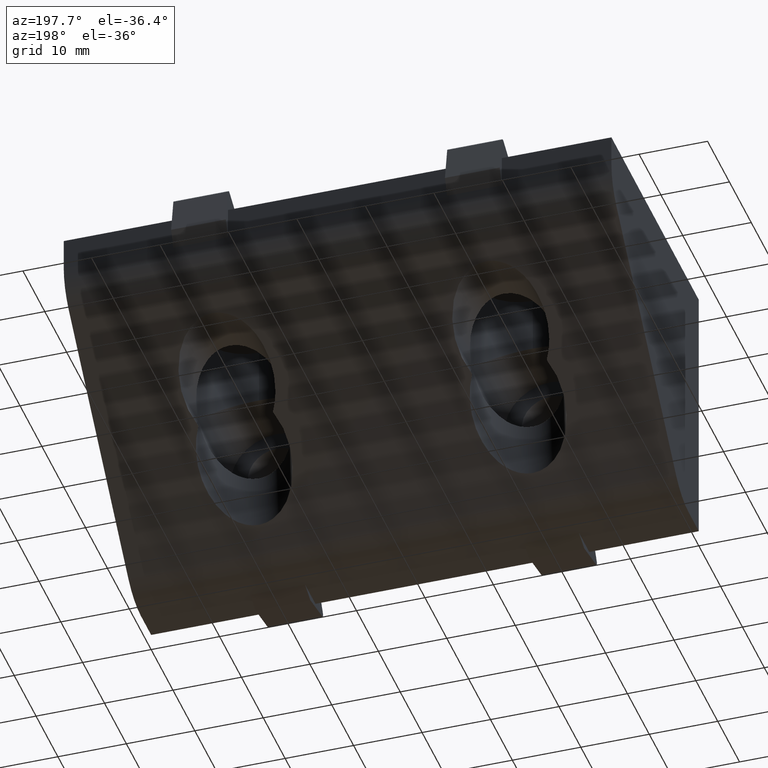
[diagram: clean part render]
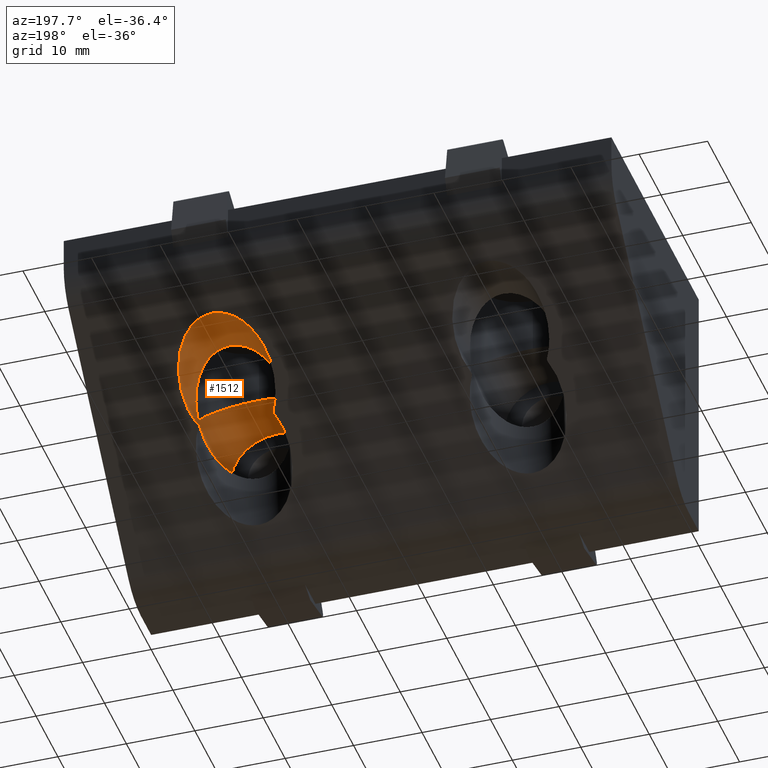
[diagram: same view with one face highlighted and labeled with its STEP entity id]
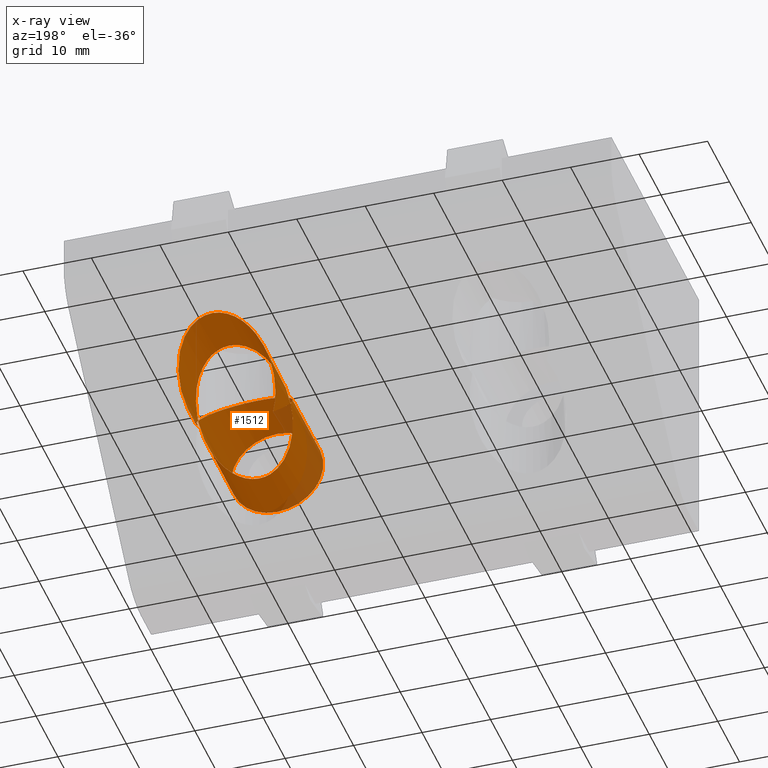
[diagram: x-ray of the same camera — body ghosted, the highlighted face saturated]
A machine part, auxiliary view. The second image highlights one B-rep face of the part: STEP entity #1512.
The next image is the same camera in x-ray: the body ghosted, the highlighted face saturated — about 13% of this face is hidden behind the body in this view.
In plain terms, the highlighted cylindrical surface (bore or boss wall) has radius 6.75 mm, axis along (0, 1, 0).
Its self-contained STEP definition (entity closure, byte-faithful):
#402=CARTESIAN_POINT('',(25.437139671100745,23.999992408000303,-23.999995030797592));
#403=VERTEX_POINT('',#402);
#404=CARTESIAN_POINT('',(14.562857168740376,23.999992407996466,-23.999995030801600));
#405=VERTEX_POINT('',#404);
#406=CARTESIAN_POINT('',(19.999998419919088,27.999995135905468,-19.999991744930448));
#407=DIRECTION('',(0.0,-0.707106830503862,0.707106731869230));
#408=DIRECTION('',(0.0,0.707106731869230,0.707106830503862));
#409=AXIS2_PLACEMENT_3D('',#406,#407,#408);
#410=ELLIPSE('',#409,9.545944156207165,6.750002316462510);
#411=EDGE_CURVE('',#403,#405,#410,.T.);
#1227=CARTESIAN_POINT('',(19.999998419919088,13.249997058446896,-13.249989428467934));
#1228=VERTEX_POINT('',#1227);
#1235=CARTESIAN_POINT('',(20.000091286149274,26.749995335546590,-13.249988154311279));
#1236=VERTEX_POINT('',#1235);
#1237=CARTESIAN_POINT('',(19.999998419919088,13.249997058446894,-13.249989428467934));
#1238=CARTESIAN_POINT('',(19.820393710549624,13.249997058446894,-13.249989428467934));
#1239=CARTESIAN_POINT('',(19.378011930974914,13.267698458312340,-13.267690818365590));
#1240=CARTESIAN_POINT('',(18.446003020757345,13.397461106541837,-13.397453392444831));
#1241=CARTESIAN_POINT('',(17.337371878308510,13.750822658735208,-13.750814732642816));
#1242=CARTESIAN_POINT('',(16.298929069725833,14.322251592291842,-14.322243258143217));
#1243=CARTESIAN_POINT('',(15.581936760001483,14.876850514915297,-14.876841691067471));
#1244=CARTESIAN_POINT('',(15.119221816588798,15.327973191278765,-15.327963877101599));
#1245=CARTESIAN_POINT('',(14.695016787727138,15.808534316511171,-15.808524383938263));
#1246=CARTESIAN_POINT('',(14.346894324088094,16.289903656570630,-16.289892969990923));
#1247=CARTESIAN_POINT('',(14.035588303751673,16.826733819593485,-16.826721925100799));
#1248=CARTESIAN_POINT('',(13.848633768355867,17.211404257870981,-17.211391309919364));
#1249=CARTESIAN_POINT('',(13.671518916870760,17.637423710131031,-17.637408958575932));
#1250=CARTESIAN_POINT('',(13.536598944933008,18.034275459265196,-18.034259737670020));
#1251=CARTESIAN_POINT('',(13.424956451117332,18.458647266729059,-18.458624968281729));
#1252=CARTESIAN_POINT('',(13.359759647209302,18.775113238330302,-18.775095460178498));
#1253=CARTESIAN_POINT('',(13.315489301144162,19.051883908134805,-19.051837785622773));
#1254=CARTESIAN_POINT('',(13.291026844677123,19.249511063587022,-19.249520315662842));
#1255=CARTESIAN_POINT('',(13.275697401321938,19.407563323757500,-19.407435938328707));
#1256=CARTESIAN_POINT('',(13.266309797983940,19.526070382943200,-19.526320873769311));
#1257=CARTESIAN_POINT('',(13.259018456144744,19.644469192284323,-19.643246708170029));
#1258=CARTESIAN_POINT('',(13.253811753738976,19.763256711689369,-19.767435341276229));
#1259=CARTESIAN_POINT('',(13.250732229497356,19.879454216133318,-19.863491129078671));
#1260=CARTESIAN_POINT('',(13.249639080568834,19.999995559919789,-20.056538199255122));
#1261=CARTESIAN_POINT('',(13.250732229496961,20.120536903708022,-19.863491129077698));
#1262=CARTESIAN_POINT('',(13.253811753740599,20.236734408146543,-19.767435341280247));
#1263=CARTESIAN_POINT('',(13.259018456138666,20.355521927571640,-19.643246708154962));
#1264=CARTESIAN_POINT('',(13.266309798006667,20.473920736837954,-19.526320873825597));
#1265=CARTESIAN_POINT('',(13.275697401237036,20.592427796303102,-19.407435938118436));
#1266=CARTESIAN_POINT('',(13.291026845128727,20.750480055080608,-19.249520316781229));
#1267=CARTESIAN_POINT('',(13.315489297494921,20.948107221180081,-19.051837776585636));
#1268=CARTESIAN_POINT('',(13.359759663442876,21.224877839361685,-18.775095500380047));
#1269=CARTESIAN_POINT('',(13.424956355483531,21.541344101411742,-18.458624731448886));
#1270=CARTESIAN_POINT('',(13.544213823395349,21.994658018887318,-18.005317770389105));
#1271=CARTESIAN_POINT('',(13.704661632512877,22.456635661502325,-17.543341084858998));
#1272=CARTESIAN_POINT('',(13.927485021814388,22.960648171961040,-17.039330559127908));
#1273=CARTESIAN_POINT('',(14.181859692583892,23.440128646663176,-16.559851209787659));
#1274=CARTESIAN_POINT('',(14.607399423813600,24.093418011726605,-15.906563085141503));
#1275=CARTESIAN_POINT('',(15.169627472305017,24.748983398419689,-15.250998515563126));
#1276=CARTESIAN_POINT('',(16.021434170975944,25.491167697903109,-14.508814945183829));
#1277=CARTESIAN_POINT('',(16.874806154462867,26.020369038130795,-13.979613997320794));
#1278=CARTESIAN_POINT('',(17.963850409493858,26.461499044706095,-13.538484278508866));
#1279=CARTESIAN_POINT('',(18.928442478278175,26.696322205057218,-13.303661254663584));
#1280=CARTESIAN_POINT('',(19.681782799478317,26.749993322488166,-13.249990167356261));
#1281=CARTESIAN_POINT('',(20.000091286149274,26.749995335546590,-13.249988154311279));
#1282=B_SPLINE_CURVE_WITH_KNOTS('',3,(#1237,#1238,#1239,#1240,#1241,#1242,#1243,#1244,#1245,#1246,#1247,#1248,#1249,#1250,#1251,#1252,#1253,#1254,#1255,#1256,#1257,#1258,#1259,#1260,#1261,#1262,#1263,#1264,#1265,#1266,#1267,#1268,#1269,#1270,#1271,#1272,#1273,#1274,#1275,#1276,#1277,#1278,#1279,#1280,#1281),.UNSPECIFIED.,.F.,.U.,(4,1,1,1,1,1,1,1,1,1,1,1,1,1,1,1,1,1,1,1,1,1,1,1,1,1,1,1,1,1,1,1,1,1,1,1,1,1,1,1,1,1,4),(0.0,0.539081213596918,1.326695496417043,2.840035277583268,4.151706921437035,5.254611806897104,6.019984913599855,6.513780684534441,7.657144544209129,8.310137588951935,8.974364245271438,9.382123786417033,10.193785180283921,10.705100481138352,11.213090108221090,11.550332053166615,11.886715360339998,12.054654366879507,12.222459981833707,12.390156322223111,12.557762044025377,12.725264924369748,12.887972188165056,13.050679451960365,13.218182332304735,13.385788054107001,13.553484394496401,13.721290009450613,13.889229015990109,14.225612323163494,14.562854268109014,15.070843895191764,15.582159196048842,16.518698735025335,17.087624337635738,17.821888263034616,18.690201580889635,20.136813446438950,21.064805781785051,22.739553024633636,23.516414668748737,24.821124126270732,25.776092787975244),.UNSPECIFIED.);
#1283=EDGE_CURVE('',#1228,#1236,#1282,.T.);
#1285=CARTESIAN_POINT('',(20.000091286149274,26.749995335546590,-13.249988154311279));
#1286=CARTESIAN_POINT('',(20.021458295769516,26.749995470676630,-13.249988019182139));
#1287=CARTESIAN_POINT('',(20.416134803505635,26.748110240725900,-13.251873248091051));
#1288=CARTESIAN_POINT('',(21.089012463596443,26.685141504157357,-13.314841949490202));
#1289=CARTESIAN_POINT('',(22.010220469315268,26.462920034590393,-13.537063287735167));
#1290=CARTESIAN_POINT('',(22.907975093300060,26.120372317056407,-13.879610786816695));
#1291=CARTESIAN_POINT('',(23.889427833492924,25.562352199923367,-14.437630497304321));
#1292=CARTESIAN_POINT('',(24.670252462676068,24.905890936831916,-15.094091157098131));
#1293=CARTESIAN_POINT('',(25.240600270993504,24.270670768604440,-15.729310533880222));
#1294=CARTESIAN_POINT('',(25.571480214740063,23.822264239304399,-16.177716357643227));
#1295=CARTESIAN_POINT('',(25.909534492629586,23.283520516227046,-16.716459014109795));
#1296=CARTESIAN_POINT('',(26.171283613935927,22.762840602569071,-17.237137527170127));
#1297=CARTESIAN_POINT('',(26.366347127787272,22.254529586630674,-17.745446451800348));
#1298=CARTESIAN_POINT('',(26.463862593278272,21.949369085894908,-18.050604986581572));
#1299=CARTESIAN_POINT('',(26.523736602288217,21.736423257753767,-18.263549476381037));
#1300=CARTESIAN_POINT('',(26.561941994112651,21.584359570572119,-18.415610914075874));
#1301=CARTESIAN_POINT('',(26.614192107312071,21.356423569336826,-18.643547465448524));
#1302=CARTESIAN_POINT('',(26.656049405142227,21.135457769133801,-18.864470835225955));
#1303=CARTESIAN_POINT('',(26.696752392184258,20.855438400164182,-19.144578668242350));
#1304=CARTESIAN_POINT('',(26.716875249101953,20.677153590891862,-19.322498475748954));
#1305=CARTESIAN_POINT('',(26.730486690672063,20.516589029023166,-19.483751191611450));
#1306=CARTESIAN_POINT('',(26.737848095926630,20.409439764511589,-19.588944077397990));
#1307=CARTESIAN_POINT('',(26.744282422569867,20.287942896840121,-19.718723325752148));
#1308=CARTESIAN_POINT('',(26.748809993864217,20.151139155977713,-19.812036552351238));
#1309=CARTESIAN_POINT('',(26.750118702009114,20.046660969040616,-20.039185430335493));
#1310=CARTESIAN_POINT('',(26.749947158042961,19.968687763475316,-19.968390110248524));
#1311=CARTESIAN_POINT('',(26.749502639085193,19.902992686926684,-19.902311338453440));
#1312=CARTESIAN_POINT('',(26.747393450711169,19.793852183525800,-19.793929312903451));
#1313=CARTESIAN_POINT('',(26.741335032925797,19.647930438536417,-19.647805792586055));
#1314=CARTESIAN_POINT('',(26.732079459659019,19.501198934950864,-19.501158635320376));
#1315=CARTESIAN_POINT('',(26.719615198504830,19.354670624859125,-19.354623869300369));
#1316=CARTESIAN_POINT('',(26.703924337034376,19.208085794516364,-19.208050792931914));
#1317=CARTESIAN_POINT('',(26.678649846499862,19.012496766510100,-19.012466804102367));
#1318=CARTESIAN_POINT('',(26.646826461200213,18.817028295454215,-18.817003020961323));
#1319=CARTESIAN_POINT('',(26.598691471908399,18.572689408624520,-18.572667679734103));
#1320=CARTESIAN_POINT('',(26.541968925625699,18.327984458525037,-18.327965405550529));
#1321=CARTESIAN_POINT('',(26.459977322515336,18.034682549312439,-18.034665723927443));
#1322=CARTESIAN_POINT('',(26.366109479228165,17.749491780425085,-17.749476581617930));
#1323=CARTESIAN_POINT('',(26.248993388123029,17.440355249311590,-17.440341427256293));
#1324=CARTESIAN_POINT('',(25.985596241657490,16.838793100106887,-16.838781352086198));
#1325=CARTESIAN_POINT('',(25.629209320574244,16.238014455938341,-16.238003862871381));
#1326=CARTESIAN_POINT('',(25.158165087916558,15.637836217114838,-15.637826513326745));
#1327=CARTESIAN_POINT('',(24.850717085077907,15.297025478366660,-15.297016198067144));
#1328=CARTESIAN_POINT('',(24.363571473839770,14.832014933034914,-14.832006152101998));
#1329=CARTESIAN_POINT('',(23.799852482979350,14.398700964078596,-14.398692561676535));
#1330=CARTESIAN_POINT('',(22.933021342463235,13.893764362356110,-13.893756338702357));
#1331=CARTESIAN_POINT('',(21.974657884791473,13.505469487917622,-13.505461711106491));
#1332=CARTESIAN_POINT('',(20.899049102432638,13.286976161776463,-13.286968511012892));
#1333=CARTESIAN_POINT('',(20.258726573290453,13.249997058446894,-13.249989428467934));
#1334=CARTESIAN_POINT('',(19.999998419919088,13.249997058446894,-13.249989428467934));
#1335=B_SPLINE_CURVE_WITH_KNOTS('',3,(#1285,#1286,#1287,#1288,#1289,#1290,#1291,#1292,#1293,#1294,#1295,#1296,#1297,#1298,#1299,#1300,#1301,#1302,#1303,#1304,#1305,#1306,#1307,#1308,#1309,#1310,#1311,#1312,#1313,#1314,#1315,#1316,#1317,#1318,#1319,#1320,#1321,#1322,#1323,#1324,#1325,#1326,#1327,#1328,#1329,#1330,#1331,#1332,#1333,#1334),.UNSPECIFIED.,.F.,.U.,(4,1,1,1,1,1,1,1,1,1,1,1,1,1,1,1,1,1,1,1,1,1,1,1,1,1,1,1,1,1,1,1,1,1,1,1,1,1,1,1,1,1,1,1,1,1,1,4),(25.776092787975244,25.840196716824508,26.960191533882444,27.798726904106502,28.750473198514932,30.009639784215658,31.559226510072634,32.372749497238630,33.199114070792213,33.703196129358354,34.872631791389608,35.540518584049963,35.936954719324397,36.199781494929852,36.461598530456037,36.592168621478891,37.179432648307888,37.407188337839933,37.786388613416008,37.938086218170703,38.089687776155714,38.241209463808602,38.455031128933705,38.663963927974208,38.701507565310145,38.742951861740856,38.950013859969872,39.157326338504120,39.364778442499770,39.572405335816846,39.780253940093793,39.988374681068592,40.405644960134573,40.614905864511279,41.034975591191767,41.457539042198420,41.883165157733721,42.277080732004030,42.815132120546082,44.554332674294642,45.032236561446553,45.726325711255278,46.268155923805395,47.486336597464913,48.216145272256952,49.632709786956497,50.775163844869809,51.552185575950489),.UNSPECIFIED.);
#1336=EDGE_CURVE('',#1236,#1228,#1335,.T.);
#1384=CARTESIAN_POINT('',(19.999998419919088,4.999998889979906,-26.749994061392954));
#1385=VERTEX_POINT('',#1384);
#1386=CARTESIAN_POINT('',(19.999998419919088,4.999998889979906,-13.249989428467934));
#1387=VERTEX_POINT('',#1386);
#1388=CARTESIAN_POINT('',(19.999998419919088,4.999998889979906,-19.999991744930444));
#1389=DIRECTION('',(0.0,1.0,0.0));
#1390=DIRECTION('',(0.0,0.0,-1.0));
#1391=AXIS2_PLACEMENT_3D('',#1388,#1389,#1390);
#1392=CIRCLE('',#1391,6.750002316462510);
#1393=EDGE_CURVE('',#1385,#1387,#1392,.T.);
#1395=CARTESIAN_POINT('',(19.999998419919088,4.999998889979906,-19.999991744930444));
#1396=DIRECTION('',(0.0,1.0,0.0));
#1397=DIRECTION('',(0.0,0.0,-1.0));
#1398=AXIS2_PLACEMENT_3D('',#1395,#1396,#1397);
#1399=CIRCLE('',#1398,6.750002316462510);
#1400=EDGE_CURVE('',#1387,#1385,#1399,.T.);
#1409=CARTESIAN_POINT('',(19.999998419919088,4.999998889979906,-19.999991744930444));
#1410=DIRECTION('',(0.0,1.0,0.0));
#1411=DIRECTION('',(0.0,0.0,-1.0));
#1412=AXIS2_PLACEMENT_3D('',#1409,#1410,#1411);
#1413=CYLINDRICAL_SURFACE('',#1412,6.750002316462510);
#1414=CARTESIAN_POINT('',(19.999998419919088,13.249997058446896,-26.749994061392954));
#1415=VERTEX_POINT('',#1414);
#1416=CARTESIAN_POINT('',(19.999998419919088,4.999998889979906,-26.749994061392954));
#1417=DIRECTION('',(0.0,1.0,0.0));
#1418=VECTOR('',#1417,8.249998168466989);
#1419=LINE('',#1416,#1418);
#1420=EDGE_CURVE('',#1385,#1415,#1419,.T.);
#1421=ORIENTED_EDGE('',*,*,#1420,.T.);
#1422=CARTESIAN_POINT('',(14.562857168740372,23.999992407996466,-23.999995030801600));
#1423=CARTESIAN_POINT('',(14.401885246651592,23.781185466113168,-23.781188441076559));
#1424=CARTESIAN_POINT('',(14.075907097643309,23.275934713286553,-23.275939091953703));
#1425=CARTESIAN_POINT('',(13.757968529648135,22.603114710207841,-22.603118947710023));
#1426=CARTESIAN_POINT('',(13.566777253414102,22.056206694990344,-22.056217621132021));
#1427=CARTESIAN_POINT('',(13.452855163259542,21.657576435693990,-21.657581151056419));
#1428=CARTESIAN_POINT('',(13.374417246898084,21.308829581067418,-21.308879131748185));
#1429=CARTESIAN_POINT('',(13.316318927866980,20.959815421828807,-20.959757476563922));
#1430=CARTESIAN_POINT('',(13.286210634354344,20.710685581855650,-20.710954915331129));
#1431=CARTESIAN_POINT('',(13.269470926922619,20.518564568571140,-20.518220506448646));
#1432=CARTESIAN_POINT('',(13.260502074541186,20.383630186206521,-20.384935195894165));
#1433=CARTESIAN_POINT('',(13.254438683398313,20.255471726906354,-20.250892017905539));
#1434=CARTESIAN_POINT('',(13.250849458362687,20.129913927219029,-20.147301275286793));
#1435=CARTESIAN_POINT('',(13.249580893684950,19.999995550618962,-19.938049537103993));
#1436=CARTESIAN_POINT('',(13.250849457390903,19.870077230335667,-20.147300685513173));
#1437=CARTESIAN_POINT('',(13.254438687411170,19.744519257015043,-20.250894453296990));
#1438=CARTESIAN_POINT('',(13.260502059492239,19.616361438502974,-20.384926062739037));
#1439=CARTESIAN_POINT('',(13.270378359792474,19.467773172366687,-20.531745952358612));
#1440=CARTESIAN_POINT('',(13.285669239020642,19.298232756370158,-20.701948723075567));
#1441=CARTESIAN_POINT('',(13.312066683428213,19.076143330790753,-20.923804446523107));
#1442=CARTESIAN_POINT('',(13.351064836198454,18.824635261828114,-21.175393484020283));
#1443=CARTESIAN_POINT('',(13.425020777839599,18.452597603457431,-21.547394315447775));
#1444=CARTESIAN_POINT('',(13.514274068654458,18.115697143998695,-21.884304882414011));
#1445=CARTESIAN_POINT('',(13.613556151400690,17.811771655732699,-22.188227214265265));
#1446=CARTESIAN_POINT('',(13.690312839704763,17.597790921743300,-22.402207142949340));
#1447=CARTESIAN_POINT('',(13.798797693724708,17.326673456862252,-22.673323404641032));
#1448=CARTESIAN_POINT('',(13.960529220034267,16.975076521093357,-23.024919260489934));
#1449=CARTESIAN_POINT('',(14.218098464704070,16.498231192213183,-23.501763400083661));
#1450=CARTESIAN_POINT('',(14.568590955389762,15.970944748026948,-24.029048909012651));
#1451=CARTESIAN_POINT('',(15.111715523914842,15.316356827074502,-24.683635935861187));
#1452=CARTESIAN_POINT('',(15.714800530254514,14.756980562975082,-25.243011636266118));
#1453=CARTESIAN_POINT('',(16.536197433957764,14.181984244929090,-25.818007474569971));
#1454=CARTESIAN_POINT('',(17.470305786706831,13.699246742299326,-26.300744642180330));
#1455=CARTESIAN_POINT('',(18.547424171358163,13.378598416206415,-26.621392776826944));
#1456=CARTESIAN_POINT('',(19.416745096985501,13.265153136592360,-26.734837991794254));
#1457=CARTESIAN_POINT('',(19.838630476160997,13.249997058446892,-26.749994061392954));
#1458=CARTESIAN_POINT('',(19.999998419919088,13.249997058446892,-26.749994061392954));
#1459=B_SPLINE_CURVE_WITH_KNOTS('',3,(#1422,#1423,#1424,#1425,#1426,#1427,#1428,#1429,#1430,#1431,#1432,#1433,#1434,#1435,#1436,#1437,#1438,#1439,#1440,#1441,#1442,#1443,#1444,#1445,#1446,#1447,#1448,#1449,#1450,#1451,#1452,#1453,#1454,#1455,#1456,#1457,#1458),.UNSPECIFIED.,.F.,.U.,(4,1,1,1,1,1,1,1,1,1,1,1,1,1,1,1,1,1,1,1,1,1,1,1,1,1,1,1,1,1,1,1,1,1,4),(0.0,1.046821396697748,2.352537852677162,3.005235927283154,3.436141925269242,4.077694316948743,4.502967690000597,4.926858517046109,5.138423785000463,5.319409127972718,5.500284751073173,5.681047966693753,5.856986833600208,6.032925700506669,6.213688916127254,6.394564539227661,6.575549882199961,6.845127801736862,7.115111737640107,7.521097418616113,7.918418547896192,8.708860235984743,8.974604772488775,9.241731569543381,9.645390879137761,10.169842585463627,10.809952917960498,11.810171939231553,12.638861872151157,14.026997615969194,14.784031331307071,16.101690895137519,17.479657148774628,18.260663004047693,18.744965353688091),.UNSPECIFIED.);
#1460=EDGE_CURVE('',#405,#1415,#1459,.T.);
#1461=ORIENTED_EDGE('',*,*,#1460,.F.);
#1462=ORIENTED_EDGE('',*,*,#411,.F.);
#1463=CARTESIAN_POINT('',(19.999998419919088,13.249997058446894,-26.749994061392954));
#1464=CARTESIAN_POINT('',(20.161366363678344,13.249997058446894,-26.749994061392954));
#1465=CARTESIAN_POINT('',(20.583251742856913,13.265153136592577,-26.734837991794016));
#1466=CARTESIAN_POINT('',(21.452572668488578,13.378598416208041,-26.621392776825342));
#1467=CARTESIAN_POINT('',(22.529691053143015,13.699246742303828,-26.300744642175804));
#1468=CARTESIAN_POINT('',(23.463799405892800,14.181984244936402,-25.818007474562652));
#1469=CARTESIAN_POINT('',(24.285196309595726,14.756980562984889,-25.243011636256302));
#1470=CARTESIAN_POINT('',(24.888281315934655,15.316356827086267,-24.683635935849416));
#1471=CARTESIAN_POINT('',(25.431405884458425,15.970944748040434,-24.029048908999162));
#1472=CARTESIAN_POINT('',(25.781898375142831,16.498231192227596,-23.501763400069247));
#1473=CARTESIAN_POINT('',(26.039467619811354,16.975076521108235,-23.024919260475052));
#1474=CARTESIAN_POINT('',(26.201199146119986,17.326673456877376,-22.673323404625901));
#1475=CARTESIAN_POINT('',(26.309684000139228,17.597790921758573,-22.402207142934085));
#1476=CARTESIAN_POINT('',(26.386440688442743,17.811771655748014,-22.188227214249896));
#1477=CARTESIAN_POINT('',(26.485722771188229,18.115697144014447,-21.884304882398801));
#1478=CARTESIAN_POINT('',(26.574976062002019,18.452597603469769,-21.547394315429674));
#1479=CARTESIAN_POINT('',(26.648932003642308,18.824635261846748,-21.175393484011583));
#1480=CARTESIAN_POINT('',(26.687930156410847,19.076143330785492,-20.923804446494991));
#1481=CARTESIAN_POINT('',(26.714327600819914,19.298232756418006,-20.701948723106899));
#1482=CARTESIAN_POINT('',(26.729618480041278,19.467773172245156,-20.531745952222579));
#1483=CARTESIAN_POINT('',(26.739494780372837,19.616361439038343,-20.384926062824125));
#1484=CARTESIAN_POINT('',(26.745558152391226,19.744519256083922,-20.250894451877357));
#1485=CARTESIAN_POINT('',(26.749147382461850,19.870077230848089,-20.147300685506654));
#1486=CARTESIAN_POINT('',(26.750415946147154,19.999995550618998,-19.938049536923657));
#1487=CARTESIAN_POINT('',(26.749147381490076,20.129913926706461,-20.147301275280398));
#1488=CARTESIAN_POINT('',(26.745558156404066,20.255471727838032,-20.250892016485327));
#1489=CARTESIAN_POINT('',(26.739494765323954,20.383630185669045,-20.384935195981434));
#1490=CARTESIAN_POINT('',(26.730525912912277,20.518564568662278,-20.518220506345372));
#1491=CARTESIAN_POINT('',(26.713786205486670,20.710685581791154,-20.710954915385823));
#1492=CARTESIAN_POINT('',(26.683677911971060,20.959815421844471,-20.959757476539451));
#1493=CARTESIAN_POINT('',(26.625579592941012,21.308829581056077,-21.308879131754011));
#1494=CARTESIAN_POINT('',(26.547141676578942,21.657576435694324,-21.657581151053353));
#1495=CARTESIAN_POINT('',(26.433219586424023,22.056206694990024,-22.056217621132930));
#1496=CARTESIAN_POINT('',(26.242028310189394,22.603114710210306,-22.603118947711156));
#1497=CARTESIAN_POINT('',(25.924089742193651,23.275934713285942,-23.275939091957316));
#1498=CARTESIAN_POINT('',(25.598111593186395,23.781185466117531,-23.781188441074242));
#1499=CARTESIAN_POINT('',(25.437139671098453,23.999992407999500,-23.999995030798480));
#1500=B_SPLINE_CURVE_WITH_KNOTS('',3,(#1463,#1464,#1465,#1466,#1467,#1468,#1469,#1470,#1471,#1472,#1473,#1474,#1475,#1476,#1477,#1478,#1479,#1480,#1481,#1482,#1483,#1484,#1485,#1486,#1487,#1488,#1489,#1490,#1491,#1492,#1493,#1494,#1495,#1496,#1497,#1498,#1499),.UNSPECIFIED.,.F.,.U.,(4,1,1,1,1,1,1,1,1,1,1,1,1,1,1,1,1,1,1,1,1,1,1,1,1,1,1,1,1,1,1,1,1,1,4),(0.0,0.484302349643901,1.265308204922683,2.643274458564265,3.960934022397619,4.717967737736834,6.106103481557359,6.934793414478424,7.935012435749798,8.575122768246812,9.099574474572723,9.503233784167055,9.770360581221635,10.036105117725670,10.826546805814267,11.223867935092660,11.629853616063487,11.899837551963294,12.169415471496798,12.350400814466903,12.531276438516759,12.712039653183394,12.887978520087408,13.063917386991410,13.244680601658040,13.425556225707908,13.606541568677988,13.818106836633229,14.241997663680467,14.667271036734091,15.308823428416220,15.739729426404093,16.392427501012818,17.698143956994251,18.744965353686791),.UNSPECIFIED.);
#1501=EDGE_CURVE('',#1415,#403,#1500,.T.);
#1502=ORIENTED_EDGE('',*,*,#1501,.F.);
#1503=ORIENTED_EDGE('',*,*,#1420,.F.);
#1504=ORIENTED_EDGE('',*,*,#1400,.F.);
#1505=ORIENTED_EDGE('',*,*,#1393,.F.);
#1506=EDGE_LOOP('',(#1421,#1461,#1462,#1502,#1503,#1504,#1505));
#1507=FACE_OUTER_BOUND('',#1506,.T.);
#1508=ORIENTED_EDGE('',*,*,#1336,.F.);
#1509=ORIENTED_EDGE('',*,*,#1283,.F.);
#1510=EDGE_LOOP('',(#1508,#1509));
#1511=FACE_BOUND('',#1510,.T.);
#1512=ADVANCED_FACE('',(#1507,#1511),#1413,.F.);